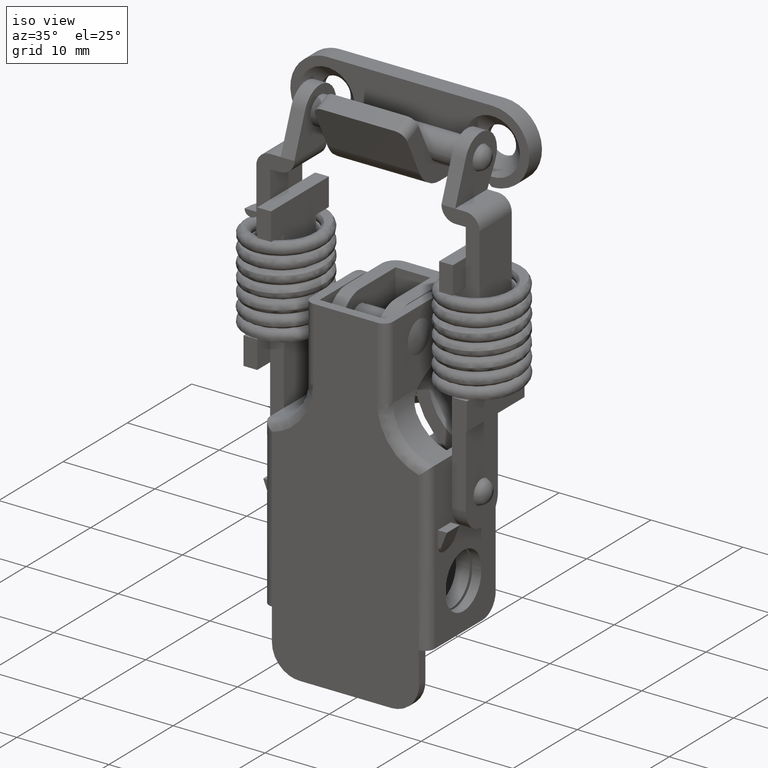
[diagram: clean part render]
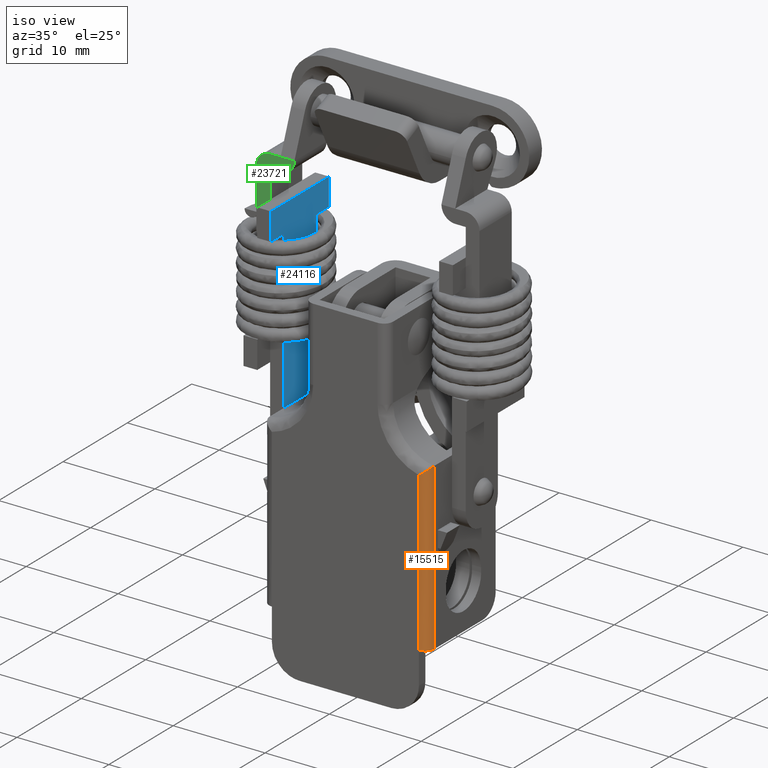
[diagram: same view with three faces highlighted in distinct colors, each labeled with its STEP entity id]
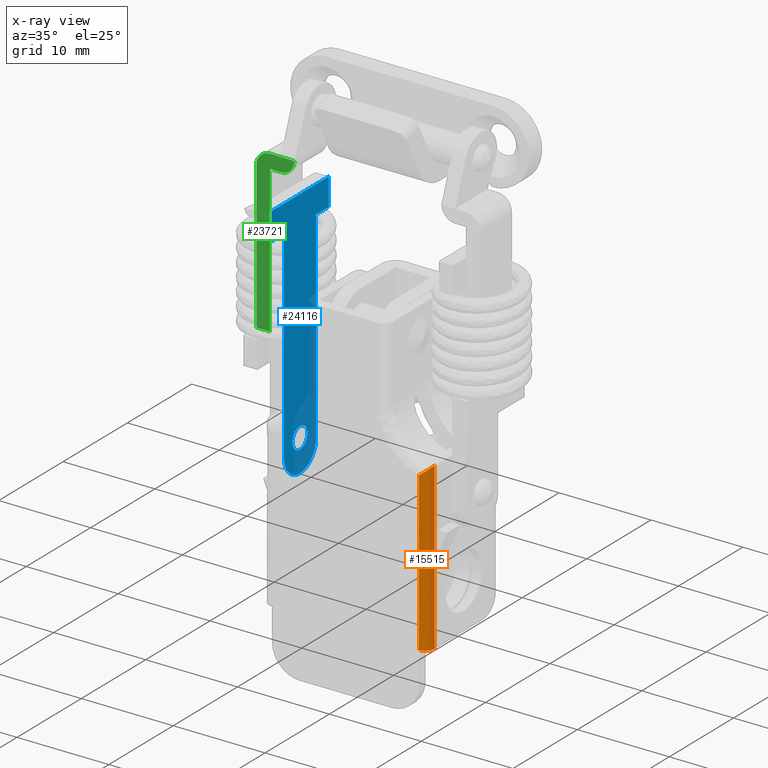
[diagram: x-ray of the same camera — body ghosted, the three highlighted faces saturated]
A machine part, iso view with three faces highlighted in distinct colors.
The next image is the same camera in x-ray (body ghosted, the three faces saturated) — at least one of them is partly hidden behind the body in this view.
Their STEP definitions:

[orange] entity #15515 — the highlighted face is a freeform B-spline surface patch.
#15434=CARTESIAN_POINT('',(-7.499657324975645,-7.973823051692071,-27.524310615171430));
#15435=CARTESIAN_POINT('',(-7.499657324975645,-7.973823051692087,-46.461892234620720));
#15436=CARTESIAN_POINT('',(-7.528492260166436,-9.074984800554665,-27.524310615171434));
#15437=CARTESIAN_POINT('',(-7.528492260166437,-9.074984800554681,-46.461892234620720));
#15438=CARTESIAN_POINT('',(-6.429679924374185,-8.997524479380841,-27.524310615171427));
#15439=CARTESIAN_POINT('',(-6.429679924374185,-8.997524479380857,-46.461892234620720));
#15447=(BOUNDED_SURFACE()B_SPLINE_SURFACE(1,2,((#15434,#15436,#15438),(#15435,#15437,#15439)),.UNSPECIFIED.,.F.,.F.,.U.)B_SPLINE_SURFACE_WITH_KNOTS((2,2),(3,3),(0.0,18.937581619449290),(0.0,0.994518632334191),.UNSPECIFIED.)GEOMETRIC_REPRESENTATION_ITEM()RATIONAL_B_SPLINE_SURFACE(((1.0,0.670944223154768,0.996392648609106),(1.0,0.670944223154768,0.996392648609106)))REPRESENTATION_ITEM('')SURFACE());
#15448=CARTESIAN_POINT('',(-6.500000000000000,-9.0,-46.0));
#15449=VERTEX_POINT('',#15448);
#15450=CARTESIAN_POINT('',(-7.500000000000000,-8.0,-46.0));
#15451=VERTEX_POINT('',#15450);
#15452=CARTESIAN_POINT('',(-6.500000000000090,-9.000000000000002,-46.0));
#15453=CARTESIAN_POINT('',(-6.914213562373158,-9.000000000000002,-46.000000000000007));
#15454=CARTESIAN_POINT('',(-7.207106781186606,-8.707106781186580,-46.0));
#15455=CARTESIAN_POINT('',(-7.500000000000090,-8.414213562373123,-46.000000000000007));
#15456=CARTESIAN_POINT('',(-7.500000000000090,-8.0,-46.0));
#15464=(BOUNDED_CURVE()B_SPLINE_CURVE(2,(#15452,#15453,#15454,#15455,#15456),.UNSPECIFIED.,.F.,.U.)B_SPLINE_CURVE_WITH_KNOTS((3,2,3),(0.0,0.500000000000000,1.0),.UNSPECIFIED.)CURVE()GEOMETRIC_REPRESENTATION_ITEM()RATIONAL_B_SPLINE_CURVE((1.0,0.923879532511295,1.0,0.923879532511295,1.0))REPRESENTATION_ITEM(''));
#15465=EDGE_CURVE('',#15449,#15451,#15464,.T.);
#15466=ORIENTED_EDGE('',*,*,#15465,.F.);
#15467=CARTESIAN_POINT('',(-6.500000000000170,-9.0,-27.974937185533101));
#15468=VERTEX_POINT('',#15467);
#15469=CARTESIAN_POINT('',(-6.500000000000170,-9.0,-27.974937185533101));
#15470=CARTESIAN_POINT('',(-6.500000000000000,-9.0,-46.0));
#15471=QUASI_UNIFORM_CURVE('',1,(#15469,#15470),.UNSPECIFIED.,.F.,.U.);
#15472=EDGE_CURVE('',#15468,#15449,#15471,.T.);
#15473=ORIENTED_EDGE('',*,*,#15472,.F.);
#15474=CARTESIAN_POINT('',(-7.500000000000090,-8.0,-28.809475019311151));
#15475=VERTEX_POINT('',#15474);
#15476=CARTESIAN_POINT('',(-6.500000000000170,-9.0,-27.974937185533101));
#15477=CARTESIAN_POINT('',(-6.576472064643105,-8.999999999999996,-27.974937185533111));
#15478=CARTESIAN_POINT('',(-6.650771875198784,-8.991349164208684,-27.982778309666319));
#15479=CARTESIAN_POINT('',(-6.759263514398158,-8.966518888089647,-28.005135916984099));
#15480=CARTESIAN_POINT('',(-6.795065322775954,-8.956166377401919,-28.014440867639131));
#15481=CARTESIAN_POINT('',(-6.863614962075399,-8.932256319546136,-28.035852235297590));
#15482=CARTESIAN_POINT('',(-6.896634996298890,-8.918654125278342,-28.047998963773320));
#15483=CARTESIAN_POINT('',(-6.960389613793393,-8.888417765294639,-28.074881356062448));
#15484=CARTESIAN_POINT('',(-6.991233030194931,-8.871714083490177,-28.089678287103538));
#15485=CARTESIAN_POINT('',(-7.050264668582605,-8.835705766295357,-28.121415812152609));
#15486=CARTESIAN_POINT('',(-7.078178785205942,-8.816588145320370,-28.138191803623609));
#15487=CARTESIAN_POINT('',(-7.157674992617889,-8.756234904670277,-28.190868822536679));
#15488=CARTESIAN_POINT('',(-7.205055229424354,-8.712028562328163,-28.229092501445020));
#15489=CARTESIAN_POINT('',(-7.268756124932809,-8.640340462493086,-28.290307382370980));
#15490=CARTESIAN_POINT('',(-7.288661557909431,-8.615616462969898,-28.311299471545659));
#15491=CARTESIAN_POINT('',(-7.325454781327055,-8.565327415209991,-28.353737340053250));
#15492=CARTESIAN_POINT('',(-7.342435860075358,-8.539658913988879,-28.375271694638862));
#15493=CARTESIAN_POINT('',(-7.389412056429426,-8.461157111006299,-28.440725141861179));
#15494=CARTESIAN_POINT('',(-7.415473158882433,-8.406838237908081,-28.485485454441680));
#15495=CARTESIAN_POINT('',(-7.447062424163367,-8.322451358893979,-28.554139129781809));
#15496=CARTESIAN_POINT('',(-7.456350945224952,-8.293747886318560,-28.577347601153370));
#15497=CARTESIAN_POINT('',(-7.472200353366276,-8.236053858396264,-28.623704518855231));
#15498=CARTESIAN_POINT('',(-7.485380587649495,-8.177962360190010,-28.670092991534759));
#15499=CARTESIAN_POINT('',(-7.493329777365727,-8.119085306142200,-28.716534971934859));
#15500=CARTESIAN_POINT('',(-7.497322130946539,-8.074631804973372,-28.751386677612949));
#15501=CARTESIAN_POINT('',(-7.498324170743136,-8.059764638634020,-28.763007320522551));
#15502=CARTESIAN_POINT('',(-7.499663495923623,-8.029930867658409,-28.786255897831751));
#15503=CARTESIAN_POINT('',(-7.500000000000000,-8.014857273640180,-28.797962723974312));
#15504=CARTESIAN_POINT('',(-7.500000000000000,-8.0,-28.809475019311151));
#15505=B_SPLINE_CURVE_WITH_KNOTS('',3,(#15476,#15477,#15478,#15479,#15480,#15481,#15482,#15483,#15484,#15485,#15486,#15487,#15488,#15489,#15490,#15491,#15492,#15493,#15494,#15495,#15496,#15497,#15498,#15499,#15500,#15501,#15502,#15503,#15504),.UNSPECIFIED.,.F.,.U.,(4,2,2,2,2,2,2,2,2,2,2,1,2,2,4),(0.0,0.125000000000004,0.187500000000005,0.250000000000006,0.312500000000007,0.375000000000008,0.500000000000009,0.562500000000007,0.625000000000006,0.750000000000002,0.812500000000002,0.875000000000001,0.937500000000000,0.968750000000000,1.0),.UNSPECIFIED.);
#15506=EDGE_CURVE('',#15468,#15475,#15505,.T.);
#15507=ORIENTED_EDGE('',*,*,#15506,.T.);
#15508=CARTESIAN_POINT('',(-7.500000000000000,-8.0,-46.0));
#15509=CARTESIAN_POINT('',(-7.500000000000090,-8.0,-28.809475019311151));
#15510=QUASI_UNIFORM_CURVE('',1,(#15508,#15509),.UNSPECIFIED.,.F.,.U.);
#15511=EDGE_CURVE('',#15451,#15475,#15510,.T.);
#15512=ORIENTED_EDGE('',*,*,#15511,.F.);
#15513=EDGE_LOOP('',(#15466,#15473,#15507,#15512));
#15514=FACE_OUTER_BOUND('',#15513,.T.);
#15515=ADVANCED_FACE('',(#15514),#15447,.T.);

[blue] entity #24116 — the highlighted face is a freeform B-spline surface patch.
#23873=CARTESIAN_POINT('',(-2.641960955288499,9.150000000000000,-31.864260629894009));
#23874=VERTEX_POINT('',#23873);
#23875=CARTESIAN_POINT('',(-1.500000000000085,9.150000000000000,-33.149999999999999));
#23876=VERTEX_POINT('',#23875);
#23877=CARTESIAN_POINT('',(-2.641960955288499,9.150000000000000,-31.864260629894005));
#23878=CARTESIAN_POINT('',(-2.650000000000086,9.150000000000000,-31.931892262146935));
#23879=CARTESIAN_POINT('',(-2.650000000000085,9.150000000000000,-32.0));
#23880=CARTESIAN_POINT('',(-2.650000000000085,9.150000000000002,-33.149999999999999));
#23881=CARTESIAN_POINT('',(-1.500000000000085,9.150000000000000,-33.149999999999999));
#23889=(BOUNDED_CURVE()B_SPLINE_CURVE(2,(#23877,#23878,#23879,#23880,#23881),.UNSPECIFIED.,.F.,.U.)B_SPLINE_CURVE_WITH_KNOTS((3,2,3),(0.229562473441433,0.250000000000000,0.500000000000000),.UNSPECIFIED.)CURVE()GEOMETRIC_REPRESENTATION_ITEM()RATIONAL_B_SPLINE_CURVE((0.956026754042428,0.976055948246703,1.0,0.707106781186547,1.0))REPRESENTATION_ITEM(''));
#23890=EDGE_CURVE('',#23874,#23876,#23889,.T.);
#23892=CARTESIAN_POINT('',(-0.352144981833090,9.150000000000002,-32.070205820761871));
#23893=VERTEX_POINT('',#23892);
#23894=CARTESIAN_POINT('',(-1.500000000000085,9.150000000000000,-33.149999999999999));
#23895=CARTESIAN_POINT('',(-0.418188023618995,9.150000000000000,-33.149999999999999));
#23896=CARTESIAN_POINT('',(-0.352144981833090,9.150000000000002,-32.070205820761871));
#23904=(BOUNDED_CURVE()B_SPLINE_CURVE(2,(#23894,#23895,#23896),.UNSPECIFIED.,.F.,.U.)B_SPLINE_CURVE_WITH_KNOTS((3,3),(0.500000000000000,0.739332962152743),.UNSPECIFIED.)CURVE()GEOMETRIC_REPRESENTATION_ITEM()RATIONAL_B_SPLINE_CURVE((1.0,0.719603993387700,0.976072041481975))REPRESENTATION_ITEM(''));
#23905=EDGE_CURVE('',#23876,#23893,#23904,.T.);
#23972=CARTESIAN_POINT('',(-1.500000000000085,9.150000000000000,-30.850000000000001));
#23973=VERTEX_POINT('',#23972);
#23974=CARTESIAN_POINT('',(-1.500000000000085,9.150000000000000,-30.850000000000001));
#23975=CARTESIAN_POINT('',(-2.521400704392490,9.150000000000000,-30.850000000000001));
#23976=CARTESIAN_POINT('',(-2.641960955288499,9.150000000000000,-31.864260629894005));
#23984=(BOUNDED_CURVE()B_SPLINE_CURVE(2,(#23974,#23975,#23976),.UNSPECIFIED.,.F.,.U.)B_SPLINE_CURVE_WITH_KNOTS((3,3),(0.0,0.229562473441433),.UNSPECIFIED.)CURVE()GEOMETRIC_REPRESENTATION_ITEM()RATIONAL_B_SPLINE_CURVE((1.0,0.731050832939844,0.956026754042428))REPRESENTATION_ITEM(''));
#23985=EDGE_CURVE('',#23973,#23874,#23984,.T.);
#24019=CARTESIAN_POINT('',(-0.352144981833090,9.150000000000002,-32.070205820761871));
#24020=CARTESIAN_POINT('',(-0.350000000000085,9.149999999999999,-32.035135678090995));
#24021=CARTESIAN_POINT('',(-0.350000000000085,9.150000000000000,-32.0));
#24022=CARTESIAN_POINT('',(-0.350000000000085,9.150000000000002,-30.850000000000001));
#24023=CARTESIAN_POINT('',(-1.500000000000085,9.150000000000000,-30.850000000000001));
#24031=(BOUNDED_CURVE()B_SPLINE_CURVE(2,(#24019,#24020,#24021,#24022,#24023),.UNSPECIFIED.,.F.,.U.)B_SPLINE_CURVE_WITH_KNOTS((3,2,3),(0.739332962152743,0.750000000000000,1.0),.UNSPECIFIED.)CURVE()GEOMETRIC_REPRESENTATION_ITEM()RATIONAL_B_SPLINE_CURVE((0.976072041481974,0.987502787798848,1.0,0.707106781186547,1.0))REPRESENTATION_ITEM(''));
#24032=EDGE_CURVE('',#23893,#23973,#24031,.T.);
#24037=CARTESIAN_POINT('',(-6.449549982556255,9.150000000000000,-36.873624946699557));
#24038=CARTESIAN_POINT('',(3.449550223955064,9.150000000000000,-36.873624946699557));
#24039=CARTESIAN_POINT('',(-6.449549982556255,9.150000000000000,-6.626374315692717));
#24040=CARTESIAN_POINT('',(3.449550223955064,9.150000000000000,-6.626374315692717));
#24041=B_SPLINE_SURFACE_WITH_KNOTS('',1,1,((#24037,#24039),(#24038,#24040)),.UNSPECIFIED.,.F.,.F.,.U.,(2,2),(2,2),(0.0,9.899100206511319),(0.0,30.247250631006839),.UNSPECIFIED.);
#24042=CARTESIAN_POINT('',(1.0,9.150000000000000,-10.999999999999860));
#24043=VERTEX_POINT('',#24042);
#24044=CARTESIAN_POINT('',(3.0,9.150000000000000,-10.999999999999860));
#24045=VERTEX_POINT('',#24044);
#24046=CARTESIAN_POINT('',(1.0,9.150000000000000,-10.999999999999860));
#24047=CARTESIAN_POINT('',(3.0,9.150000000000000,-10.999999999999860));
#24048=QUASI_UNIFORM_CURVE('',1,(#24046,#24047),.UNSPECIFIED.,.F.,.U.);
#24049=EDGE_CURVE('',#24043,#24045,#24048,.T.);
#24050=ORIENTED_EDGE('',*,*,#24049,.T.);
#24051=CARTESIAN_POINT('',(3.0,9.150000000000000,-7.999999999999860));
#24052=VERTEX_POINT('',#24051);
#24053=CARTESIAN_POINT('',(3.0,9.150000000000000,-10.999999999999860));
#24054=CARTESIAN_POINT('',(3.0,9.150000000000000,-7.999999999999860));
#24055=QUASI_UNIFORM_CURVE('',1,(#24053,#24054),.UNSPECIFIED.,.F.,.U.);
#24056=EDGE_CURVE('',#24045,#24052,#24055,.T.);
#24057=ORIENTED_EDGE('',*,*,#24056,.T.);
#24058=CARTESIAN_POINT('',(-6.0,9.150000000000000,-7.999999999999860));
#24059=VERTEX_POINT('',#24058);
#24060=CARTESIAN_POINT('',(3.0,9.150000000000000,-7.999999999999860));
#24061=CARTESIAN_POINT('',(-6.0,9.150000000000000,-7.999999999999860));
#24062=QUASI_UNIFORM_CURVE('',1,(#24060,#24061),.UNSPECIFIED.,.F.,.U.);
#24063=EDGE_CURVE('',#24052,#24059,#24062,.T.);
#24064=ORIENTED_EDGE('',*,*,#24063,.T.);
#24065=CARTESIAN_POINT('',(-6.0,9.150000000000000,-10.999999999999860));
#24066=VERTEX_POINT('',#24065);
#24067=CARTESIAN_POINT('',(-6.0,9.150000000000000,-7.999999999999860));
#24068=CARTESIAN_POINT('',(-6.0,9.150000000000000,-10.999999999999860));
#24069=QUASI_UNIFORM_CURVE('',1,(#24067,#24068),.UNSPECIFIED.,.F.,.U.);
#24070=EDGE_CURVE('',#24059,#24066,#24069,.T.);
#24071=ORIENTED_EDGE('',*,*,#24070,.T.);
#24072=CARTESIAN_POINT('',(-4.0,9.150000000000000,-10.999999999999860));
#24073=VERTEX_POINT('',#24072);
#24074=CARTESIAN_POINT('',(-6.0,9.150000000000000,-10.999999999999860));
#24075=CARTESIAN_POINT('',(-4.0,9.150000000000000,-10.999999999999860));
#24076=QUASI_UNIFORM_CURVE('',1,(#24074,#24075),.UNSPECIFIED.,.F.,.U.);
#24077=EDGE_CURVE('',#24066,#24073,#24076,.T.);
#24078=ORIENTED_EDGE('',*,*,#24077,.T.);
#24079=CARTESIAN_POINT('',(-4.0,9.150000000000000,-33.0));
#24080=VERTEX_POINT('',#24079);
#24081=CARTESIAN_POINT('',(-4.0,9.150000000000000,-10.999999999999860));
#24082=CARTESIAN_POINT('',(-4.0,9.150000000000000,-33.0));
#24083=QUASI_UNIFORM_CURVE('',1,(#24081,#24082),.UNSPECIFIED.,.F.,.U.);
#24084=EDGE_CURVE('',#24073,#24080,#24083,.T.);
#24085=ORIENTED_EDGE('',*,*,#24084,.T.);
#24086=CARTESIAN_POINT('',(0.999999999999915,9.150000000000000,-33.0));
#24087=VERTEX_POINT('',#24086);
#24088=CARTESIAN_POINT('',(-4.000000000000085,9.150000000000000,-33.0));
#24089=CARTESIAN_POINT('',(-4.000000000000086,9.150000000000000,-35.500000000000000));
#24090=CARTESIAN_POINT('',(-1.500000000000085,9.150000000000000,-35.500000000000007));
#24091=CARTESIAN_POINT('',(0.999999999999915,9.150000000000000,-35.500000000000000));
#24092=CARTESIAN_POINT('',(0.999999999999915,9.150000000000000,-33.0));
#24100=(BOUNDED_CURVE()B_SPLINE_CURVE(2,(#24088,#24089,#24090,#24091,#24092),.UNSPECIFIED.,.F.,.U.)B_SPLINE_CURVE_WITH_KNOTS((3,2,3),(0.0,0.500000000000000,1.0),.UNSPECIFIED.)CURVE()GEOMETRIC_REPRESENTATION_ITEM()RATIONAL_B_SPLINE_CURVE((1.0,0.707106781186548,1.0,0.707106781186548,1.0))REPRESENTATION_ITEM(''));
#24101=EDGE_CURVE('',#24080,#24087,#24100,.T.);
#24102=ORIENTED_EDGE('',*,*,#24101,.T.);
#24103=CARTESIAN_POINT('',(0.999999999999915,9.150000000000000,-33.0));
#24104=CARTESIAN_POINT('',(1.0,9.150000000000000,-10.999999999999860));
#24105=QUASI_UNIFORM_CURVE('',1,(#24103,#24104),.UNSPECIFIED.,.F.,.U.);
#24106=EDGE_CURVE('',#24087,#24043,#24105,.T.);
#24107=ORIENTED_EDGE('',*,*,#24106,.T.);
#24108=EDGE_LOOP('',(#24050,#24057,#24064,#24071,#24078,#24085,#24102,#24107));
#24109=FACE_OUTER_BOUND('',#24108,.T.);
#24110=ORIENTED_EDGE('',*,*,#23905,.F.);
#24111=ORIENTED_EDGE('',*,*,#23890,.F.);
#24112=ORIENTED_EDGE('',*,*,#23985,.F.);
#24113=ORIENTED_EDGE('',*,*,#24032,.F.);
#24114=EDGE_LOOP('',(#24110,#24111,#24112,#24113));
#24115=FACE_BOUND('',#24114,.T.);
#24116=ADVANCED_FACE('',(#24109,#24115),#24041,.T.);

[green] entity #23721 — the highlighted face is a freeform B-spline surface patch.
#23278=CARTESIAN_POINT('',(-4.0,8.0,-3.500000000000000));
#23279=VERTEX_POINT('',#23278);
#23285=CARTESIAN_POINT('',(-4.0,9.500000000000000,-4.999999999999861));
#23286=VERTEX_POINT('',#23285);
#23287=CARTESIAN_POINT('',(-4.0,9.500000000000000,-4.999999999999861));
#23288=CARTESIAN_POINT('',(-4.000000000000000,8.0,-4.999999999999861));
#23289=CARTESIAN_POINT('',(-4.0,8.0,-3.500000000000000));
#23297=(BOUNDED_CURVE()B_SPLINE_CURVE(2,(#23287,#23288,#23289),.UNSPECIFIED.,.F.,.U.)CURVE()GEOMETRIC_REPRESENTATION_ITEM()QUASI_UNIFORM_CURVE()RATIONAL_B_SPLINE_CURVE((1.0,0.707106781186548,1.0))REPRESENTATION_ITEM(''));
#23298=EDGE_CURVE('',#23286,#23279,#23297,.T.);
#23322=CARTESIAN_POINT('',(-4.0,10.650000000000000,-3.500000000000000));
#23323=VERTEX_POINT('',#23322);
#23324=CARTESIAN_POINT('',(-4.0,12.150000000000000,-5.0));
#23325=VERTEX_POINT('',#23324);
#23326=CARTESIAN_POINT('',(-4.0,10.650000000000000,-3.500000000000000));
#23327=CARTESIAN_POINT('',(-4.000000000000000,12.149999999999999,-3.499999999999999));
#23328=CARTESIAN_POINT('',(-4.0,12.150000000000000,-5.0));
#23336=(BOUNDED_CURVE()B_SPLINE_CURVE(2,(#23326,#23327,#23328),.UNSPECIFIED.,.F.,.U.)CURVE()GEOMETRIC_REPRESENTATION_ITEM()QUASI_UNIFORM_CURVE()RATIONAL_B_SPLINE_CURVE((1.0,0.707106781186548,1.0))REPRESENTATION_ITEM(''));
#23337=EDGE_CURVE('',#23323,#23325,#23336,.T.);
#23402=CARTESIAN_POINT('',(-4.0,9.500000000000000,-3.500000000000000));
#23403=VERTEX_POINT('',#23402);
#23455=CARTESIAN_POINT('',(-4.0,8.0,-3.500000000000000));
#23456=CARTESIAN_POINT('',(-4.0,9.500000000000000,-3.500000000000000));
#23457=QUASI_UNIFORM_CURVE('',1,(#23455,#23456),.UNSPECIFIED.,.F.,.U.);
#23458=EDGE_CURVE('',#23279,#23403,#23457,.T.);
#23547=CARTESIAN_POINT('',(-4.0,10.650000000000000,-4.999999999999861));
#23548=VERTEX_POINT('',#23547);
#23549=CARTESIAN_POINT('',(-4.0,10.650000000000000,-4.999999999999861));
#23550=CARTESIAN_POINT('',(-4.0,9.500000000000000,-4.999999999999861));
#23551=QUASI_UNIFORM_CURVE('',1,(#23549,#23550),.UNSPECIFIED.,.F.,.U.);
#23552=EDGE_CURVE('',#23548,#23286,#23551,.T.);
#23567=CARTESIAN_POINT('',(-4.0,12.150000000000000,-21.0));
#23568=VERTEX_POINT('',#23567);
#23569=CARTESIAN_POINT('',(-4.0,12.150000000000000,-21.0));
#23570=CARTESIAN_POINT('',(-4.0,12.150000000000000,-5.0));
#23571=QUASI_UNIFORM_CURVE('',1,(#23569,#23570),.UNSPECIFIED.,.F.,.U.);
#23572=EDGE_CURVE('',#23568,#23325,#23571,.T.);
#23631=CARTESIAN_POINT('',(-4.0,10.650000000000000,-21.0));
#23632=VERTEX_POINT('',#23631);
#23633=CARTESIAN_POINT('',(-4.0,10.650000000000000,-21.0));
#23634=CARTESIAN_POINT('',(-4.0,10.650000000000000,-4.999999999999861));
#23635=QUASI_UNIFORM_CURVE('',1,(#23633,#23634),.UNSPECIFIED.,.F.,.U.);
#23636=EDGE_CURVE('',#23632,#23548,#23635,.T.);
#23698=CARTESIAN_POINT('',(-4.0,7.792707537696936,-21.874124966081610));
#23699=CARTESIAN_POINT('',(-4.0,7.792707537696936,-2.625874564531818));
#23700=CARTESIAN_POINT('',(-4.0,12.357291979952480,-21.874124966081610));
#23701=CARTESIAN_POINT('',(-4.0,12.357291979952480,-2.625874564531818));
#23702=B_SPLINE_SURFACE_WITH_KNOTS('',1,1,((#23698,#23700),(#23699,#23701)),.UNSPECIFIED.,.F.,.F.,.U.,(2,2),(2,2),(0.0,19.248250401549790),(0.0,4.564584442255539),.UNSPECIFIED.);
#23703=CARTESIAN_POINT('',(-4.0,9.500000000000000,-3.500000000000000));
#23704=CARTESIAN_POINT('',(-4.0,10.650000000000000,-3.500000000000000));
#23705=QUASI_UNIFORM_CURVE('',1,(#23703,#23704),.UNSPECIFIED.,.F.,.U.);
#23706=EDGE_CURVE('',#23403,#23323,#23705,.T.);
#23707=ORIENTED_EDGE('',*,*,#23706,.T.);
#23708=ORIENTED_EDGE('',*,*,#23337,.T.);
#23709=ORIENTED_EDGE('',*,*,#23572,.F.);
#23710=CARTESIAN_POINT('',(-4.0,10.650000000000000,-21.0));
#23711=CARTESIAN_POINT('',(-4.0,12.150000000000000,-21.0));
#23712=QUASI_UNIFORM_CURVE('',1,(#23710,#23711),.UNSPECIFIED.,.F.,.U.);
#23713=EDGE_CURVE('',#23632,#23568,#23712,.T.);
#23714=ORIENTED_EDGE('',*,*,#23713,.F.);
#23715=ORIENTED_EDGE('',*,*,#23636,.T.);
#23716=ORIENTED_EDGE('',*,*,#23552,.T.);
#23717=ORIENTED_EDGE('',*,*,#23298,.T.);
#23718=ORIENTED_EDGE('',*,*,#23458,.T.);
#23719=EDGE_LOOP('',(#23707,#23708,#23709,#23714,#23715,#23716,#23717,#23718));
#23720=FACE_OUTER_BOUND('',#23719,.T.);
#23721=ADVANCED_FACE('',(#23720),#23702,.T.);